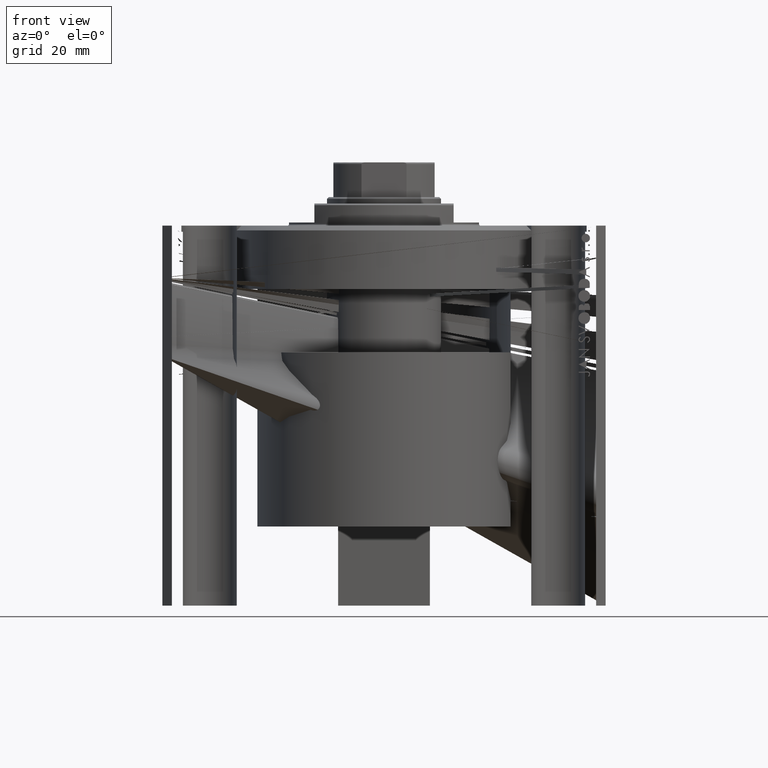
[diagram: clean part render]
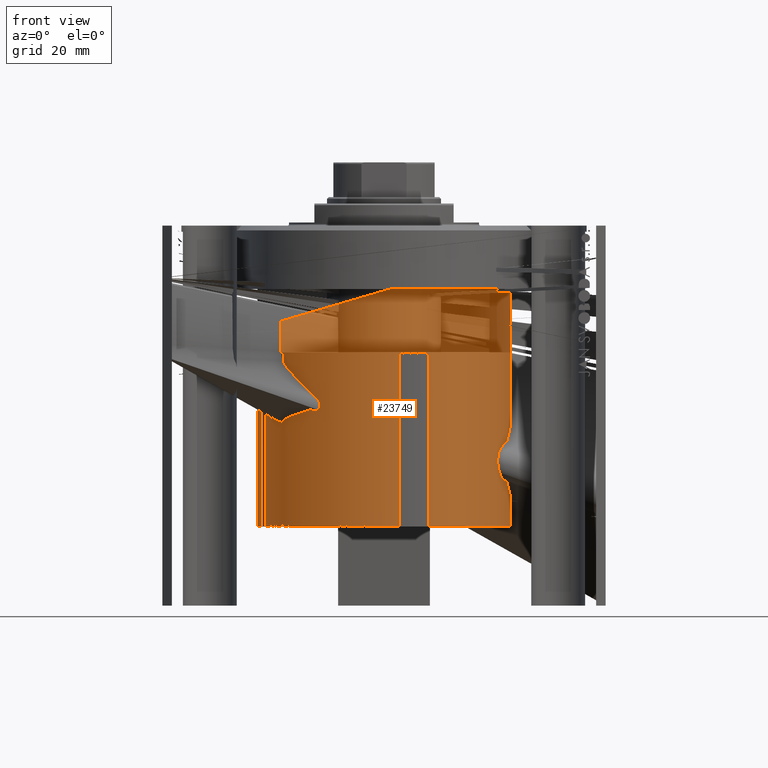
[diagram: same view with one face highlighted and labeled with its STEP entity id]
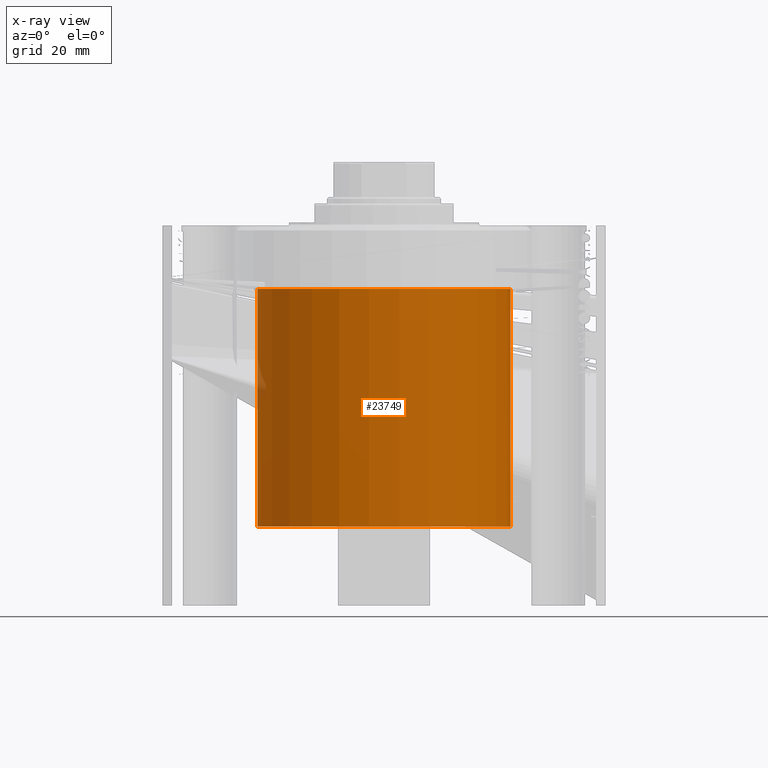
[diagram: x-ray of the same camera — body ghosted, the highlighted face saturated]
A machine part, front view. The second image highlights one B-rep face of the part: STEP entity #23749.
The next image is the same camera in x-ray: the body ghosted, the highlighted face saturated — about 0% of this face is hidden behind the body in this view.
In plain terms, the highlighted cylindrical surface (partial cylindrical patch) has radius 40 mm, axis along (0, 0, 1).
Its self-contained STEP definition (entity closure, byte-faithful):
#91 = CARTESIAN_POINT ( 'NONE',  ( 39.98755274677900218, -1.003757231862751009, -86.73484839080963127 ) ) ;
#328 = CARTESIAN_POINT ( 'NONE',  ( 40.00000000000000000, 3.022137594547156248E-17, -87.00000000000000000 ) ) ;
#575 = ORIENTED_EDGE ( 'NONE', *, *, #8287, .T. ) ;
#702 = CARTESIAN_POINT ( 'NONE',  ( 40.00000000000000711, -0.2611582470416159429, -83.00000000000005684 ) ) ;
#873 = CARTESIAN_POINT ( 'NONE',  ( 40.00000000000000000, 0.000000000000000000, -95.00000000000000000 ) ) ;
#937 = CARTESIAN_POINT ( 'NONE',  ( 39.95311872421955002, -1.936221022746515308, -84.48226116818536013 ) ) ;
#1042 = CARTESIAN_POINT ( 'NONE',  ( 39.98148221579612027, -1.221876869789999764, -86.58878709545477648 ) ) ;
#1179 = CARTESIAN_POINT ( 'NONE',  ( 39.98807331454906233, -1.005980880063963578, -83.25187843352546224 ) ) ;
#1706 = EDGE_CURVE ( 'NONE', #32374, #47195, #41324, .T. ) ;
#2174 = CARTESIAN_POINT ( 'NONE',  ( -39.97176586693763767, -1.505474969618711079, -36.32308080074695056 ) ) ;
#2656 = CARTESIAN_POINT ( 'NONE',  ( -39.99999999999999289, -0.2610222839562321706, -37.00000000000000000 ) ) ;
#2707 = AXIS2_PLACEMENT_3D ( 'NONE', #5209, #31190, #45283 ) ;
#2891 = CARTESIAN_POINT ( 'NONE',  ( -39.94997419154996265, -1.999890523593354619, -35.13357529726873452 ) ) ;
#3527 = VECTOR ( 'NONE', #28763, 1000.000000000000000 ) ;
#3904 = CARTESIAN_POINT ( 'NONE',  ( -40.00000000000000000, 4.898587196589413026E-15, -95.00000000000000000 ) ) ;
#4021 = ORIENTED_EDGE ( 'NONE', *, *, #28359, .T. ) ;
#4653 = VERTEX_POINT ( 'NONE', #17108 ) ;
#5011 = CARTESIAN_POINT ( 'NONE',  ( 40.00000000000000000, -7.123019543693126097E-24, -82.99999999999998579 ) ) ;
#5164 = EDGE_CURVE ( 'NONE', #5326, #8748, #25844, .T. ) ;
#5209 = CARTESIAN_POINT ( 'NONE',  ( 0.000000000000000000, 0.000000000000000000, -95.00000000000000000 ) ) ;
#5326 = VERTEX_POINT ( 'NONE', #41823 ) ;
#6002 = CARTESIAN_POINT ( 'NONE',  ( -40.00000000000000000, 4.898587189460959019E-15, -37.00000000000000000 ) ) ;
#6080 = EDGE_CURVE ( 'NONE', #5326, #4653, #23276, .T. ) ;
#6478 = CARTESIAN_POINT ( 'NONE',  ( -39.98808477704317710, -1.005500044224703959, -36.74837801808690330 ) ) ;
#6711 = CARTESIAN_POINT ( 'NONE',  ( -40.00000000000000000, -0.2642733961107794904, -32.99999999999999289 ) ) ;
#7538 = CARTESIAN_POINT ( 'NONE',  ( 39.94996871087638368, -1.999999999999533928, -84.99999999999998579 ) ) ;
#8017 = EDGE_CURVE ( 'NONE', #8748, #34479, #15874, .T. ) ;
#8108 = CARTESIAN_POINT ( 'NONE',  ( 39.95963195732932860, -1.797313899295208905, -84.11296659975893419 ) ) ;
#8221 = CARTESIAN_POINT ( 'NONE',  ( 39.95962314440981800, -1.797510241044922186, -85.88665407656374384 ) ) ;
#8287 = EDGE_CURVE ( 'NONE', #45325, #32374, #18157, .T. ) ;
#8748 = VERTEX_POINT ( 'NONE', #36566 ) ;
#8832 = CARTESIAN_POINT ( 'NONE',  ( 0.000000000000000000, 0.000000000000000000, -95.00000000000000000 ) ) ;
#9567 = CARTESIAN_POINT ( 'NONE',  ( -39.95501191335212354, -1.897248253400663609, -35.64621551410552058 ) ) ;
#10041 = CARTESIAN_POINT ( 'NONE',  ( -39.98146574706436240, -1.222418309695456173, -33.41162423406408521 ) ) ;
#10279 = CARTESIAN_POINT ( 'NONE',  ( -39.95959991158211011, -1.798025398075954628, -34.11437946863432558 ) ) ;
#10581 = CARTESIAN_POINT ( 'NONE',  ( 40.00000000000000000, 0.000000000000000000, -95.00000000000000000 ) ) ;
#10682 = ORIENTED_EDGE ( 'NONE', *, *, #43476, .F. ) ;
#11680 = AXIS2_PLACEMENT_3D ( 'NONE', #28917, #30332, #38437 ) ;
#11796 = CARTESIAN_POINT ( 'NONE',  ( 39.94996871087637658, -1.999999999999533928, -85.13187480388944550 ) ) ;
#11933 = CARTESIAN_POINT ( 'NONE',  ( 39.94996871087638368, -1.999999999999534372, -84.86798774079922225 ) ) ;
#12162 = CARTESIAN_POINT ( 'NONE',  ( 39.96843082707852801, -1.590542785129184233, -83.78045409442967184 ) ) ;
#13007 = ORIENTED_EDGE ( 'NONE', *, *, #44098, .T. ) ;
#13153 = CARTESIAN_POINT ( 'NONE',  ( -39.95313607126405486, -1.935864075839068610, -35.51905568481351594 ) ) ;
#13470 = DIRECTION ( 'NONE',  ( -0.000000000000000000, -0.000000000000000000, 1.000000000000000000 ) ) ;
#13623 = CARTESIAN_POINT ( 'NONE',  ( -39.98155010483453253, -1.228713488296116818, -36.59945425739334723 ) ) ;
#13847 = CARTESIAN_POINT ( 'NONE',  ( -39.95965519480901662, -1.796798442540265661, -35.88806575352695916 ) ) ;
#14055 = VECTOR ( 'NONE', #43517, 1000.000000000000000 ) ;
#14167 = EDGE_CURVE ( 'NONE', #4653, #47195, #22599, .T. ) ;
#14614 = CARTESIAN_POINT ( 'NONE',  ( -40.00000000000000000, 3.176717991102973922E-16, -32.99999999999999289 ) ) ;
#15267 = CARTESIAN_POINT ( 'NONE',  ( 39.99728772807394250, -0.5243847237203292933, -83.05245097526227482 ) ) ;
#15369 = CARTESIAN_POINT ( 'NONE',  ( 39.95062491871536992, -1.987011453486452250, -85.26218355703861107 ) ) ;
#15740 = CARTESIAN_POINT ( 'NONE',  ( 39.95062265781891142, -1.987057345190007540, -84.73806784500418132 ) ) ;
#15874 = B_SPLINE_CURVE_WITH_KNOTS ( 'NONE', 3,
 ( #6002, #2656, #35096, #6478, #13623, #2174, #42265, #17668, #13847, #9567, #13153, #42501, #2891, #45842, #31274, #21253, #46326, #10279, #24597, #39398, #46558, #16967, #10041, #42955, #17436, #31514, #6711, #21022 ),
 .UNSPECIFIED., .F., .F.,
 ( 4, 2, 2, 2, 2, 2, 2, 2, 2, 2, 2, 2, 2, 4 ),
 ( 0.006253887622122840731, 0.007035445425860899910, 0.007817003229598959088, 0.008207782131467996484, 0.008598561033337033879, 0.008989339935206071275, 0.009380118837075108670, 0.009770897738944146066, 0.01016167664081318346, 0.01055245554268222086, 0.01094323444455125825, 0.01133401334642029565, 0.01172479224828933304, 0.01250635005202740783 ),
 .UNSPECIFIED. ) ;
#16967 = CARTESIAN_POINT ( 'NONE',  ( -39.97822161943979324, -1.322993290506748076, -33.49443641325464682 ) ) ;
#17108 = CARTESIAN_POINT ( 'NONE',  ( 40.00000000000000000, 0.000000000000000000, -95.00000000000000000 ) ) ;
#17436 = CARTESIAN_POINT ( 'NONE',  ( -39.99033090231615262, -0.8876408111740532458, -33.20304211855953014 ) ) ;
#17668 = CARTESIAN_POINT ( 'NONE',  ( -39.96240665200651421, -1.735323248996501588, -36.00287365536161843 ) ) ;
#17976 = LINE ( 'NONE', #10581, #18096 ) ;
#18096 = VECTOR ( 'NONE', #13470, 1000.000000000000000 ) ;
#18157 = B_SPLINE_CURVE_WITH_KNOTS ( 'NONE', 3,
 ( #5011, #702, #15267, #1179, #29806, #44372, #12162, #26238, #8108, #22669, #937, #15740, #11933, #19554 ),
 .UNSPECIFIED., .F., .F.,
 ( 4, 2, 2, 2, 2, 2, 4 ),
 ( 0.006253887622123758400, 0.007035852529074620478, 0.007817817436025482555, 0.008208799889500899283, 0.008599782342976317745, 0.008990764796451734472, 0.009381747249927151200 ),
 .UNSPECIFIED. ) ;
#18186 = ORIENTED_EDGE ( 'NONE', *, *, #8017, .T. ) ;
#18751 = CARTESIAN_POINT ( 'NONE',  ( 40.00000000000000000, 0.000000000000000000, -20.00000000000000355 ) ) ;
#19174 = CARTESIAN_POINT ( 'NONE',  ( 39.99725731907661697, -0.5265393650770479050, -86.94693108982437479 ) ) ;
#19554 = CARTESIAN_POINT ( 'NONE',  ( 39.94996871087638368, -1.999999999999533928, -84.99999999999998579 ) ) ;
#20204 = ORIENTED_EDGE ( 'NONE', *, *, #14167, .F. ) ;
#21022 = CARTESIAN_POINT ( 'NONE',  ( -40.00000000000000000, 3.176717991102973922E-16, -32.99999999999999289 ) ) ;
#21253 = CARTESIAN_POINT ( 'NONE',  ( -39.95310035905028201, -1.936598471871985083, -34.48370712704680585 ) ) ;
#21332 = CARTESIAN_POINT ( 'NONE',  ( 40.00000000000000000, -7.123019543693126097E-24, -82.99999999999998579 ) ) ;
#22048 = CARTESIAN_POINT ( 'NONE',  ( 39.95311763711179509, -1.936243008321337555, -85.51760771496813618 ) ) ;
#22599 = LINE ( 'NONE', #873, #43006 ) ;
#22669 = CARTESIAN_POINT ( 'NONE',  ( 39.95499164081206800, -1.897673944715563277, -84.35502007373054312 ) ) ;
#23020 = ORIENTED_EDGE ( 'NONE', *, *, #1706, .T. ) ;
#23276 = CIRCLE ( 'NONE', #2707, 40.00000000000000000 ) ;
#23402 = DIRECTION ( 'NONE',  ( -0.000000000000000000, -0.000000000000000000, 1.000000000000000000 ) ) ;
#23749 = ADVANCED_FACE ( 'NONE', ( #26955 ), #41530, .F. ) ;
#24597 = CARTESIAN_POINT ( 'NONE',  ( -39.96234813593243018, -1.736659235415104252, -33.99946690219611156 ) ) ;
#24696 = VERTEX_POINT ( 'NONE', #18751 ) ;
#25844 = LINE ( 'NONE', #3904, #14055 ) ;
#26238 = CARTESIAN_POINT ( 'NONE',  ( 39.96238287616974816, -1.735869807532471221, -83.99806458370963469 ) ) ;
#26344 = CARTESIAN_POINT ( 'NONE',  ( 39.96840300585797934, -1.591231583159740559, -86.21861287823932685 ) ) ;
#26955 = FACE_OUTER_BOUND ( 'NONE', #38310, .T. ) ;
#27145 = CARTESIAN_POINT ( 'NONE',  ( 40.00000000000000000, 3.022137594547156248E-17, -87.00000000000000000 ) ) ;
#27416 = DIRECTION ( 'NONE',  ( 1.000000000000000000, 0.000000000000000000, 0.000000000000000000 ) ) ;
#28359 = EDGE_CURVE ( 'NONE', #45993, #24696, #35313, .T. ) ;
#28763 = DIRECTION ( 'NONE',  ( -0.000000000000000000, -0.000000000000000000, 1.000000000000000000 ) ) ;
#28917 = CARTESIAN_POINT ( 'NONE',  ( 0.000000000000000000, 0.000000000000000000, -20.00000000000000355 ) ) ;
#29224 = LINE ( 'NONE', #36628, #3527 ) ;
#29434 = CARTESIAN_POINT ( 'NONE',  ( 39.99034025637237022, -0.8872121321392498761, -86.79716463504581725 ) ) ;
#29806 = CARTESIAN_POINT ( 'NONE',  ( 39.98153325464723196, -1.229265378214520199, -83.40094686079743269 ) ) ;
#30154 = CARTESIAN_POINT ( 'NONE',  ( 39.99999999999999289, -0.2641357395636182437, -86.99999999999994316 ) ) ;
#30332 = DIRECTION ( 'NONE',  ( 0.000000000000000000, 0.000000000000000000, 1.000000000000000000 ) ) ;
#31190 = DIRECTION ( 'NONE',  ( 0.000000000000000000, 0.000000000000000000, 1.000000000000000000 ) ) ;
#31274 = CARTESIAN_POINT ( 'NONE',  ( -39.95061496280469271, -1.987210616751022840, -34.73929722557829791 ) ) ;
#31514 = CARTESIAN_POINT ( 'NONE',  ( -39.99725439346650546, -0.5268097663652565599, -33.05312383049329128 ) ) ;
#32374 = VERTEX_POINT ( 'NONE', #7538 ) ;
#33023 = CARTESIAN_POINT ( 'NONE',  ( 39.94996871087638368, -1.999999999999533928, -84.99999999999998579 ) ) ;
#34479 = VERTEX_POINT ( 'NONE', #14614 ) ;
#35096 = CARTESIAN_POINT ( 'NONE',  ( -39.99729065416362772, -0.5241133477467165847, -36.94760397200742830 ) ) ;
#35313 = CIRCLE ( 'NONE', #11680, 40.00000000000000000 ) ;
#36566 = CARTESIAN_POINT ( 'NONE',  ( -40.00000000000000000, 4.898587189460959019E-15, -37.00000000000000000 ) ) ;
#36628 = CARTESIAN_POINT ( 'NONE',  ( -40.00000000000000000, 4.898587196589413026E-15, -95.00000000000000000 ) ) ;
#37147 = DIRECTION ( 'NONE',  ( -0.000000000000000000, -0.000000000000000000, 1.000000000000000000 ) ) ;
#37311 = CARTESIAN_POINT ( 'NONE',  ( 39.96237188306369603, -1.736113553211090066, -86.00147143175053088 ) ) ;
#38310 = EDGE_LOOP ( 'NONE', ( #43839, #43820, #18186, #13007, #4021, #10682, #575, #23020, #20204 ) ) ;
#38437 = DIRECTION ( 'NONE',  ( 1.000000000000000000, 0.000000000000000000, 0.000000000000000000 ) ) ;
#39398 = CARTESIAN_POINT ( 'NONE',  ( -39.96837961631823788, -1.591818043399304550, -33.78214652093856074 ) ) ;
#39961 = CARTESIAN_POINT ( 'NONE',  ( 39.95498092565202342, -1.897899929052392132, -85.64434026527243304 ) ) ;
#40202 = CARTESIAN_POINT ( 'NONE',  ( 39.97171421371167810, -1.506842900384648853, -86.32152895162371919 ) ) ;
#41284 = AXIS2_PLACEMENT_3D ( 'NONE', #8832, #23402, #27416 ) ;
#41324 = B_SPLINE_CURVE_WITH_KNOTS ( 'NONE', 3,
 ( #33023, #11796, #15369, #22048, #39961, #8221, #37311, #26344, #40202, #44472, #1042, #91, #29434, #19174, #30154, #328 ),
 .UNSPECIFIED., .F., .F.,
 ( 4, 2, 2, 2, 2, 2, 2, 4 ),
 ( 0.009381747249927151200, 0.009772322600189680894, 0.01016289795045221059, 0.01055347330071474028, 0.01094404865097726998, 0.01133462400123979967, 0.01172519935150232936, 0.01250635005202738875 ),
 .UNSPECIFIED. ) ;
#41530 = CYLINDRICAL_SURFACE ( 'NONE', #41284, 40.00000000000000000 ) ;
#41823 = CARTESIAN_POINT ( 'NONE',  ( -40.00000000000000000, 4.898587196589413026E-15, -95.00000000000000000 ) ) ;
#42265 = CARTESIAN_POINT ( 'NONE',  ( -39.96845429220498858, -1.589953990140400064, -36.22030678780492963 ) ) ;
#42501 = CARTESIAN_POINT ( 'NONE',  ( -39.95063264744342746, -1.986857498184113169, -35.26341185617021523 ) ) ;
#42955 = CARTESIAN_POINT ( 'NONE',  ( -39.98754073909765339, -1.004238739824514282, -33.26542551294939187 ) ) ;
#43006 = VECTOR ( 'NONE', #37147, 1000.000000000000000 ) ;
#43476 = EDGE_CURVE ( 'NONE', #45325, #24696, #17976, .T. ) ;
#43517 = DIRECTION ( 'NONE',  ( -0.000000000000000000, -0.000000000000000000, 1.000000000000000000 ) ) ;
#43820 = ORIENTED_EDGE ( 'NONE', *, *, #5164, .T. ) ;
#43839 = ORIENTED_EDGE ( 'NONE', *, *, #6080, .F. ) ;
#44098 = EDGE_CURVE ( 'NONE', #34479, #45993, #29224, .T. ) ;
#44372 = CARTESIAN_POINT ( 'NONE',  ( 39.97174371281857930, -1.506063825800100453, -83.67758258078892197 ) ) ;
#44472 = CARTESIAN_POINT ( 'NONE',  ( 39.97824023806944638, -1.322429648898208576, -86.50605249580961242 ) ) ;
#45283 = DIRECTION ( 'NONE',  ( 1.000000000000000000, 0.000000000000000000, 0.000000000000000000 ) ) ;
#45325 = VERTEX_POINT ( 'NONE', #21332 ) ;
#45332 = CARTESIAN_POINT ( 'NONE',  ( -40.00000000000000000, 4.898587196589413026E-15, -20.00000000000000355 ) ) ;
#45842 = CARTESIAN_POINT ( 'NONE',  ( -39.94996329829713488, -2.000108116222454324, -34.86972341031480482 ) ) ;
#45993 = VERTEX_POINT ( 'NONE', #45332 ) ;
#46326 = CARTESIAN_POINT ( 'NONE',  ( -39.95496063565278888, -1.898325849076777372, -34.35689967467779127 ) ) ;
#46558 = CARTESIAN_POINT ( 'NONE',  ( -39.97169201868642574, -1.507432341118292163, -33.67913638197957482 ) ) ;
#47195 = VERTEX_POINT ( 'NONE', #27145 ) ;